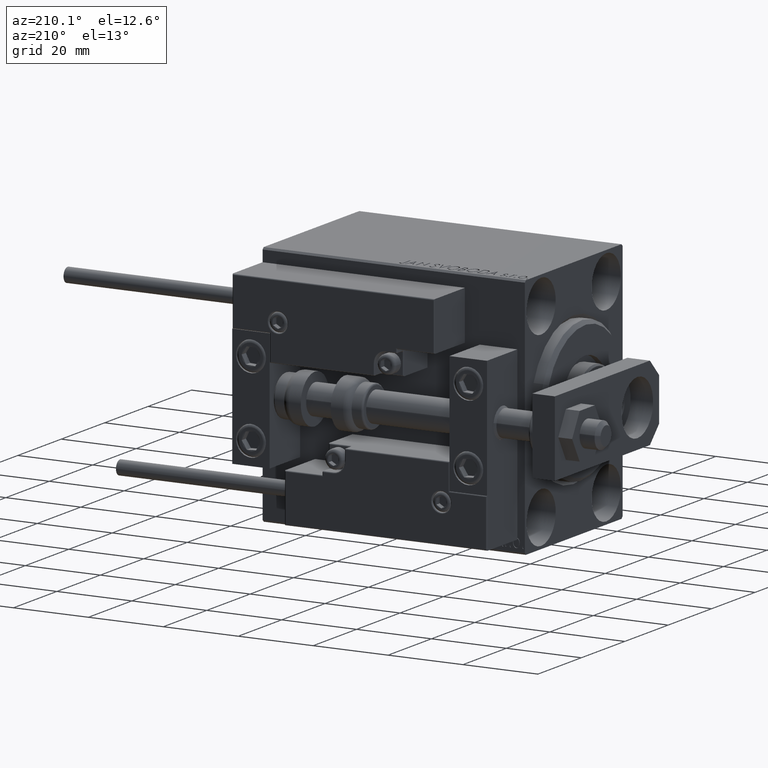
[diagram: clean part render]
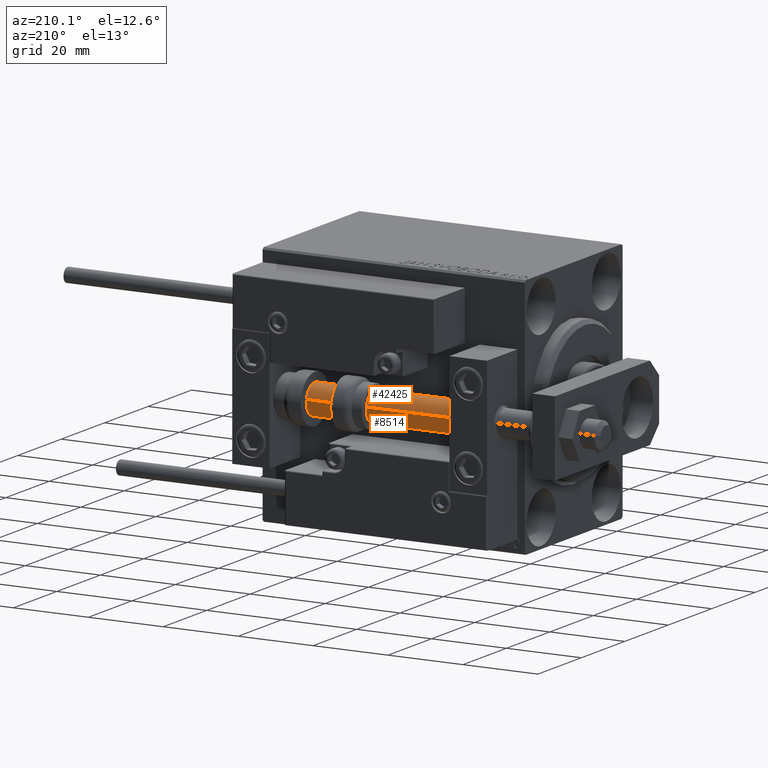
[diagram: same view with one multi-face feature highlighted, each face labeled with its STEP entity id]
A machine part, auxiliary view. The highlighted faces form ONE feature: a constant-radius fillet chain: 2 tangent blend faces with common blend radius 4 mm. The faces share edges in the B-rep.
Their STEP definitions:
[1] entity #8514 (Cylinder):
#1081 = CARTESIAN_POINT ( 'NONE',  ( -4.000000000000000000, 0.000000000000000000, 70.00000000000000000 ) ) ;
#3036 = CARTESIAN_POINT ( 'NONE',  ( -4.000000000000000000, 0.000000000000000000, 2.000000000000029310 ) ) ;
#3176 = VECTOR ( 'NONE', #13403, 1000.000000000000000 ) ;
#4006 = VECTOR ( 'NONE', #31620, 1000.000000000000000 ) ;
#5987 = DIRECTION ( 'NONE',  ( 1.000000000000000000, 0.000000000000000000, 0.000000000000000000 ) ) ;
#7496 = EDGE_CURVE ( 'NONE', #15751, #42360, #35434, .T. ) ;
#8514 = ADVANCED_FACE ( 'NONE', ( #50167 ), #23435, .T. ) ;
#10337 = ORIENTED_EDGE ( 'NONE', *, *, #7496, .T. ) ;
#10347 = CARTESIAN_POINT ( 'NONE',  ( 4.000000000000000000, 4.898587196589412829E-16, 2.000000000000029310 ) ) ;
#11333 = EDGE_CURVE ( 'NONE', #19270, #28671, #20786, .T. ) ;
#12097 = CARTESIAN_POINT ( 'NONE',  ( 4.000000000000000000, 4.898587196589412829E-16, 70.00000000000000000 ) ) ;
#13403 = DIRECTION ( 'NONE',  ( -0.000000000000000000, -0.000000000000000000, -1.000000000000000000 ) ) ;
#13636 = CARTESIAN_POINT ( 'NONE',  ( 0.000000000000000000, 0.000000000000000000, 70.00000000000000000 ) ) ;
#13791 = AXIS2_PLACEMENT_3D ( 'NONE', #15050, #46095, #41762 ) ;
#15050 = CARTESIAN_POINT ( 'NONE',  ( 0.000000000000000000, 0.000000000000000000, 70.00000000000000000 ) ) ;
#15751 = VERTEX_POINT ( 'NONE', #24265 ) ;
#16952 = DIRECTION ( 'NONE',  ( 0.000000000000000000, 0.000000000000000000, 1.000000000000000000 ) ) ;
#18071 = EDGE_CURVE ( 'NONE', #42360, #28671, #48151, .T. ) ;
#19270 = VERTEX_POINT ( 'NONE', #12097 ) ;
#20786 = LINE ( 'NONE', #21038, #3176 ) ;
#21038 = CARTESIAN_POINT ( 'NONE',  ( 4.000000000000000000, 4.898587196589412829E-16, 70.00000000000000000 ) ) ;
#22534 = EDGE_CURVE ( 'NONE', #15751, #19270, #46530, .T. ) ;
#23435 = CYLINDRICAL_SURFACE ( 'NONE', #13791, 4.000000000000000000 ) ;
#23623 = ORIENTED_EDGE ( 'NONE', *, *, #11333, .F. ) ;
#23657 = EDGE_LOOP ( 'NONE', ( #23623, #31347, #10337, #32951 ) ) ;
#24265 = CARTESIAN_POINT ( 'NONE',  ( -4.000000000000000000, 0.000000000000000000, 70.00000000000000000 ) ) ;
#24929 = CARTESIAN_POINT ( 'NONE',  ( 0.000000000000000000, 0.000000000000000000, 2.000000000000029310 ) ) ;
#28664 = AXIS2_PLACEMENT_3D ( 'NONE', #13636, #16952, #5987 ) ;
#28671 = VERTEX_POINT ( 'NONE', #10347 ) ;
#31347 = ORIENTED_EDGE ( 'NONE', *, *, #22534, .F. ) ;
#31620 = DIRECTION ( 'NONE',  ( -0.000000000000000000, -0.000000000000000000, -1.000000000000000000 ) ) ;
#32951 = ORIENTED_EDGE ( 'NONE', *, *, #18071, .T. ) ;
#35434 = LINE ( 'NONE', #1081, #4006 ) ;
#36623 = DIRECTION ( 'NONE',  ( -0.000000000000000000, -0.000000000000000000, 1.000000000000000000 ) ) ;
#39197 = AXIS2_PLACEMENT_3D ( 'NONE', #24929, #36623, #47844 ) ;
#41762 = DIRECTION ( 'NONE',  ( -1.000000000000000000, 0.000000000000000000, 0.000000000000000000 ) ) ;
#42360 = VERTEX_POINT ( 'NONE', #3036 ) ;
#46095 = DIRECTION ( 'NONE',  ( -0.000000000000000000, -0.000000000000000000, -1.000000000000000000 ) ) ;
#46530 = CIRCLE ( 'NONE', #28664, 4.000000000000000000 ) ;
#47844 = DIRECTION ( 'NONE',  ( 1.000000000000000000, 0.000000000000000000, 0.000000000000000000 ) ) ;
#48151 = CIRCLE ( 'NONE', #39197, 4.000000000000000000 ) ;
#50167 = FACE_OUTER_BOUND ( 'NONE', #23657, .T. ) ;
[2] entity #42425 (Cylinder):
#1081 = CARTESIAN_POINT ( 'NONE',  ( -4.000000000000000000, 0.000000000000000000, 70.00000000000000000 ) ) ;
#2558 = ORIENTED_EDGE ( 'NONE', *, *, #11333, .T. ) ;
#2601 = EDGE_CURVE ( 'NONE', #28671, #42360, #3772, .T. ) ;
#3036 = CARTESIAN_POINT ( 'NONE',  ( -4.000000000000000000, 0.000000000000000000, 2.000000000000029310 ) ) ;
#3176 = VECTOR ( 'NONE', #13403, 1000.000000000000000 ) ;
#3772 = CIRCLE ( 'NONE', #11909, 4.000000000000000000 ) ;
#3845 = ORIENTED_EDGE ( 'NONE', *, *, #29748, .F. ) ;
#4006 = VECTOR ( 'NONE', #31620, 1000.000000000000000 ) ;
#6514 = CARTESIAN_POINT ( 'NONE',  ( 0.000000000000000000, 0.000000000000000000, 2.000000000000029310 ) ) ;
#7496 = EDGE_CURVE ( 'NONE', #15751, #42360, #35434, .T. ) ;
#9297 = DIRECTION ( 'NONE',  ( -0.000000000000000000, -0.000000000000000000, -1.000000000000000000 ) ) ;
#10118 = AXIS2_PLACEMENT_3D ( 'NONE', #34815, #9297, #42450 ) ;
#10347 = CARTESIAN_POINT ( 'NONE',  ( 4.000000000000000000, 4.898587196589412829E-16, 2.000000000000029310 ) ) ;
#11333 = EDGE_CURVE ( 'NONE', #19270, #28671, #20786, .T. ) ;
#11909 = AXIS2_PLACEMENT_3D ( 'NONE', #6514, #49274, #41371 ) ;
#12097 = CARTESIAN_POINT ( 'NONE',  ( 4.000000000000000000, 4.898587196589412829E-16, 70.00000000000000000 ) ) ;
#12408 = DIRECTION ( 'NONE',  ( 0.000000000000000000, 0.000000000000000000, 1.000000000000000000 ) ) ;
#13121 = CYLINDRICAL_SURFACE ( 'NONE', #10118, 4.000000000000000000 ) ;
#13403 = DIRECTION ( 'NONE',  ( -0.000000000000000000, -0.000000000000000000, -1.000000000000000000 ) ) ;
#15751 = VERTEX_POINT ( 'NONE', #24265 ) ;
#18876 = ORIENTED_EDGE ( 'NONE', *, *, #7496, .F. ) ;
#19270 = VERTEX_POINT ( 'NONE', #12097 ) ;
#20786 = LINE ( 'NONE', #21038, #3176 ) ;
#21038 = CARTESIAN_POINT ( 'NONE',  ( 4.000000000000000000, 4.898587196589412829E-16, 70.00000000000000000 ) ) ;
#22713 = EDGE_LOOP ( 'NONE', ( #3845, #2558, #26753, #18876 ) ) ;
#24265 = CARTESIAN_POINT ( 'NONE',  ( -4.000000000000000000, 0.000000000000000000, 70.00000000000000000 ) ) ;
#26753 = ORIENTED_EDGE ( 'NONE', *, *, #2601, .T. ) ;
#28047 = CIRCLE ( 'NONE', #42666, 4.000000000000000000 ) ;
#28671 = VERTEX_POINT ( 'NONE', #10347 ) ;
#29748 = EDGE_CURVE ( 'NONE', #19270, #15751, #28047, .T. ) ;
#31620 = DIRECTION ( 'NONE',  ( -0.000000000000000000, -0.000000000000000000, -1.000000000000000000 ) ) ;
#31749 = CARTESIAN_POINT ( 'NONE',  ( 0.000000000000000000, 0.000000000000000000, 70.00000000000000000 ) ) ;
#34815 = CARTESIAN_POINT ( 'NONE',  ( 0.000000000000000000, 0.000000000000000000, 70.00000000000000000 ) ) ;
#35434 = LINE ( 'NONE', #1081, #4006 ) ;
#39149 = FACE_OUTER_BOUND ( 'NONE', #22713, .T. ) ;
#41371 = DIRECTION ( 'NONE',  ( 1.000000000000000000, 0.000000000000000000, 0.000000000000000000 ) ) ;
#42360 = VERTEX_POINT ( 'NONE', #3036 ) ;
#42425 = ADVANCED_FACE ( 'NONE', ( #39149 ), #13121, .T. ) ;
#42450 = DIRECTION ( 'NONE',  ( -1.000000000000000000, 0.000000000000000000, 0.000000000000000000 ) ) ;
#42666 = AXIS2_PLACEMENT_3D ( 'NONE', #31749, #12408, #47280 ) ;
#47280 = DIRECTION ( 'NONE',  ( 1.000000000000000000, 0.000000000000000000, 0.000000000000000000 ) ) ;
#49274 = DIRECTION ( 'NONE',  ( -0.000000000000000000, -0.000000000000000000, 1.000000000000000000 ) ) ;